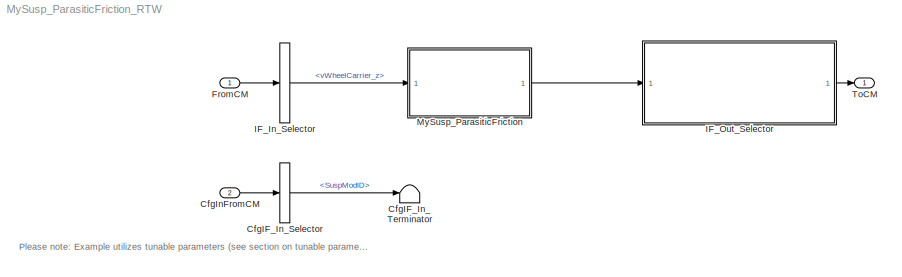
MODEL MySusp_ParasiticFriction_RTW
KIND model
CONFIG InitFcn = vehicle = 'Car'; if ~length(which('cmself')), cmenv; end\nMySusp_ParasiticFriction_RTW_bus
CONFIG PreLoadFcn = vehicle = 'Car'; if ~length(which('cmself')), cmenv; end\nMySusp_ParasiticFriction_RTW_bus\nMySusp_ParasiticFriction_RTW_params
BLOCK [BusSelector] CfgIF_In_Selector
  OutputAsBus = off
  OutputSignals = SuspModID
  Ports = [1, 1]
  SID = 9
BLOCK [Terminator] CfgIF_In_Terminator
  SID = 10
BLOCK [Inport] CfgInFromCM
  IconDisplay = Port number
  OutDataTypeStr = Bus: cmSusp_ParasiticEffectsCfgIn
  Port = 2
  SID = 8
BLOCK [Inport] FromCM
  IconDisplay = Port number
  OutDataTypeStr = Bus: cmSusp_ParasiticEffectsIn
  SID = 1
BLOCK [BusSelector] IF_In_Selector
  OutputAsBus = off
  OutputSignals = vWheelCarrier_z
  Ports = [1, 1]
  SID = 2
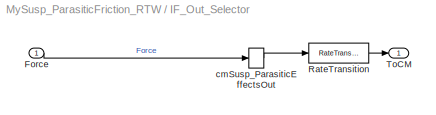
BLOCK [SubSystem] IF_Out_Selector
  OpenFcn = cmSignalSelect('SignalSelection_CB',gcb)
  Ports = [1, 1]
  RequestExecContextInheritance = off
  SID = 5
  UserData = DataTag0
  UserDataPersistent = on
BLOCK [Inport] IF_Out_Selector/Force
  IconDisplay = Port number
  SID = 59
BLOCK [RateTransition] IF_Out_Selector/RateTransition
  OutPortSampleTime = str2num(get_param(bdroot,'FixedStep'))
  SID = 6
BLOCK [Outport] IF_Out_Selector/ToCM
  IconDisplay = Port number
  SID = 7
BLOCK [BusCreator] IF_Out_Selector/cmSusp_ParasiticEffectsOut
  InheritFromInputs = on
  Inputs = 1
  Ports = [1, 1]
  SID = 11
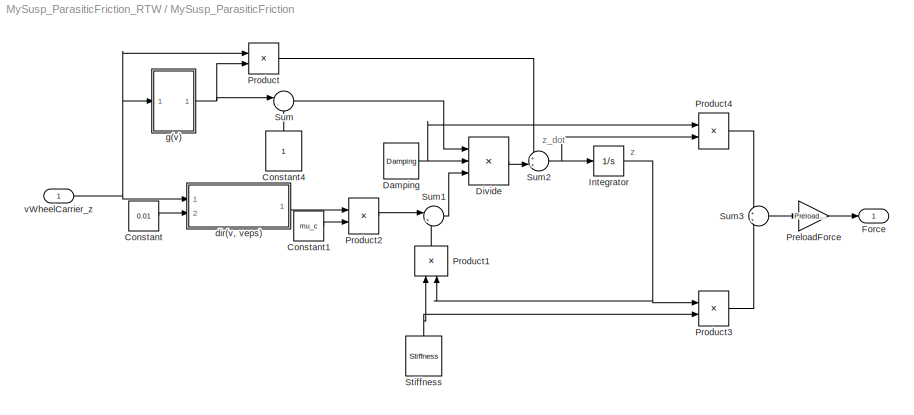
BLOCK [SubSystem] MySusp_ParasiticFriction
  Ports = [1, 1]
  RequestExecContextInheritance = off
  SID = 13
BLOCK [Constant] MySusp_ParasiticFriction/Constant
  SID = 15
  Value = 0.01
BLOCK [Constant] MySusp_ParasiticFriction/Constant1
  SID = 16
  Value = mu_c
BLOCK [Constant] MySusp_ParasiticFriction/Constant4
  SID = 17
BLOCK [Constant] MySusp_ParasiticFriction/Damping
  SID = 18
  Value = Damping
BLOCK [Product] MySusp_ParasiticFriction/Divide
  InputSameDT = off
  Inputs = */*
  OutDataTypeStr = Inherit: Inherit via internal rule
  Ports = [3, 1]
  RndMeth = Floor
  SID = 19
  SaturateOnIntegerOverflow = off
BLOCK [Outport] MySusp_ParasiticFriction/Force
  IconDisplay = Port number
  SID = 56
BLOCK [Integrator] MySusp_ParasiticFriction/Integrator
  Ports = [1, 1]
  SID = 20
BLOCK [Gain] MySusp_ParasiticFriction/PreloadForce
  Gain = PreloadForce
  OutDataTypeStr = Inherit: Inherit via internal rule
  ParamDataTypeStr = Inherit: Inherit via internal rule
  SID = 21
  SaturateOnIntegerOverflow = off
BLOCK [Product] MySusp_ParasiticFriction/Product
  InputSameDT = off
  OutDataTypeStr = Inherit: Inherit via internal rule
  Ports = [2, 1]
  RndMeth = Floor
  SID = 22
  SaturateOnIntegerOverflow = off
BLOCK [Product] MySusp_ParasiticFriction/Product1
  InputSameDT = off
  OutDataTypeStr = Inherit: Inherit via internal rule
  Ports = [2, 1]
  RndMeth = Floor
  SID = 23
  SaturateOnIntegerOverflow = off
BLOCK [Product] MySusp_ParasiticFriction/Product2
  InputSameDT = off
  OutDataTypeStr = Inherit: Inherit via internal rule
  Ports = [2, 1]
  RndMeth = Floor
  SID = 24
  SaturateOnIntegerOverflow = off
BLOCK [Product] MySusp_ParasiticFriction/Product3
  InputSameDT = off
  OutDataTypeStr = Inherit: Inherit via internal rule
  Ports = [2, 1]
  RndMeth = Floor
  SID = 25
  SaturateOnIntegerOverflow = off
BLOCK [Product] MySusp_ParasiticFriction/Product4
  InputSameDT = off
  OutDataTypeStr = Inherit: Inherit via internal rule
  Ports = [2, 1]
  RndMeth = Floor
  SID = 26
  SaturateOnIntegerOverflow = off
BLOCK [Constant] MySusp_ParasiticFriction/Stiffness
  SID = 27
  Value = Stiffness
BLOCK [Sum] MySusp_ParasiticFriction/Sum
  IconShape = round
  InputSameDT = off
  Inputs = |-+
  OutDataTypeStr = Inherit: Inherit via internal rule
  Ports = [2, 1]
  SID = 28
  SaturateOnIntegerOverflow = off
BLOCK [Sum] MySusp_ParasiticFriction/Sum1
  IconShape = round
  InputSameDT = off
  Inputs = |+-
  OutDataTypeStr = Inherit: Inherit via internal rule
  Ports = [2, 1]
  SID = 29
  SaturateOnIntegerOverflow = off
BLOCK [Sum] MySusp_ParasiticFriction/Sum2
  IconShape = round
  InputSameDT = off
  Inputs = ++|
  OutDataTypeStr = Inherit: Inherit via internal rule
  Ports = [2, 1]
  SID = 30
  SaturateOnIntegerOverflow = off
BLOCK [Sum] MySusp_ParasiticFriction/Sum3
  IconShape = round
  InputSameDT = off
  OutDataTypeStr = Inherit: Inherit via internal rule
  Ports = [2, 1]
  SID = 31
  SaturateOnIntegerOverflow = off
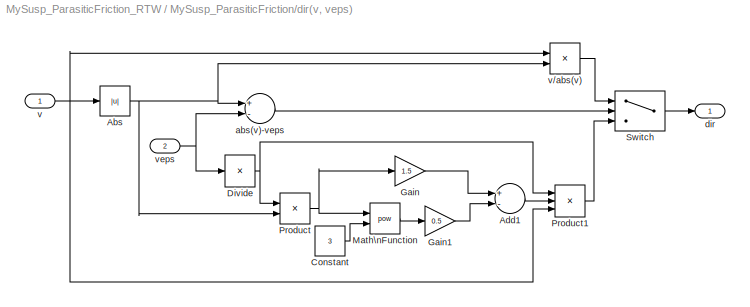
BLOCK [SubSystem] MySusp_ParasiticFriction/dir(v, veps)
  Ports = [2, 1]
  RequestExecContextInheritance = off
  SID = 32
BLOCK [Abs] MySusp_ParasiticFriction/dir(v, veps)/Abs
  SID = 35
  SaturateOnIntegerOverflow = off
BLOCK [Sum] MySusp_ParasiticFriction/dir(v, veps)/Add1
  InputSameDT = off
  Inputs = +-
  OutDataTypeStr = Inherit: Inherit via internal rule
  Ports = [2, 1]
  SID = 36
  SaturateOnIntegerOverflow = off
BLOCK [Constant] MySusp_ParasiticFriction/dir(v, veps)/Constant
  SID = 37
  Value = 3
BLOCK [Product] MySusp_ParasiticFriction/dir(v, veps)/Divide
  InputSameDT = off
  Inputs = /
  OutDataTypeStr = Inherit: Inherit via internal rule
  Ports = [1, 1]
  RndMeth = Floor
  SID = 38
  SaturateOnIntegerOverflow = off
BLOCK [Gain] MySusp_ParasiticFriction/dir(v, veps)/Gain
  Gain = 1.5
  OutDataTypeStr = Inherit: Inherit via internal rule
  ParamDataTypeStr = Inherit: Inherit via internal rule
  SID = 39
  SaturateOnIntegerOverflow = off
BLOCK [Gain] MySusp_ParasiticFriction/dir(v, veps)/Gain1
  Gain = 0.5
  OutDataTypeStr = Inherit: Inherit via internal rule
  ParamDataTypeStr = Inherit: Inherit via internal rule
  SID = 40
  SaturateOnIntegerOverflow = off
BLOCK [Math] MySusp_ParasiticFriction/dir(v, veps)/Math\nFunction
  Operator = pow
  Ports = [2, 1]
  SID = 41
BLOCK [Product] MySusp_ParasiticFriction/dir(v, veps)/Product
  InputSameDT = off
  OutDataTypeStr = Inherit: Inherit via internal rule
  Ports = [2, 1]
  RndMeth = Floor
  SID = 42
  SaturateOnIntegerOverflow = off
BLOCK [Product] MySusp_ParasiticFriction/dir(v, veps)/Product1
  InputSameDT = off
  Inputs = 3
  OutDataTypeStr = Inherit: Inherit via internal rule
  Ports = [3, 1]
  RndMeth = Floor
  SID = 43
  SaturateOnIntegerOverflow = off
BLOCK [Switch] MySusp_ParasiticFriction/dir(v, veps)/Switch
  InputSameDT = off
  SID = 44
  SaturateOnIntegerOverflow = off
BLOCK [Sum] MySusp_ParasiticFriction/dir(v, veps)/abs(v)-veps
  InputSameDT = off
  Inputs = +-
  OutDataTypeStr = Inherit: Inherit via internal rule
  Ports = [2, 1]
  SID = 45
  SaturateOnIntegerOverflow = off
BLOCK [Outport] MySusp_ParasiticFriction/dir(v, veps)/dir
  IconDisplay = Port number
  SID = 47
BLOCK [Inport] MySusp_ParasiticFriction/dir(v, veps)/v
  IconDisplay = Port number
  SID = 33
BLOCK [Product] MySusp_ParasiticFriction/dir(v, veps)/v//abs(v)
  InputSameDT = off
  Inputs = */
  OutDataTypeStr = Inherit: Inherit via internal rule
  Ports = [2, 1]
  RndMeth = Floor
  SID = 46
  SaturateOnIntegerOverflow = off
BLOCK [Inport] MySusp_ParasiticFriction/dir(v, veps)/veps
  IconDisplay = Port number
  Port = 2
  SID = 34
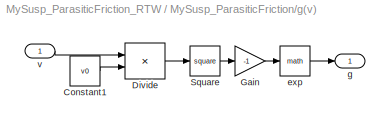
BLOCK [SubSystem] MySusp_ParasiticFriction/g(v)
  Ports = [1, 1]
  RequestExecContextInheritance = off
  SID = 48
BLOCK [Constant] MySusp_ParasiticFriction/g(v)/Constant1
  SID = 50
  Value = v0
BLOCK [Product] MySusp_ParasiticFriction/g(v)/Divide
  InputSameDT = off
  Inputs = */
  OutDataTypeStr = Inherit: Inherit via internal rule
  Ports = [2, 1]
  RndMeth = Floor
  SID = 51
  SaturateOnIntegerOverflow = off
BLOCK [Gain] MySusp_ParasiticFriction/g(v)/Gain
  Gain = -1
  OutDataTypeStr = Inherit: Inherit via internal rule
  ParamDataTypeStr = Inherit: Inherit via internal rule
  SID = 52
  SaturateOnIntegerOverflow = off
BLOCK [Math] MySusp_ParasiticFriction/g(v)/Square
  Operator = square
  Ports = [1, 1]
  SID = 53
BLOCK [Math] MySusp_ParasiticFriction/g(v)/exp
  Ports = [1, 1]
  SID = 54
BLOCK [Outport] MySusp_ParasiticFriction/g(v)/g
  IconDisplay = Port number
  SID = 55
BLOCK [Inport] MySusp_ParasiticFriction/g(v)/v
  IconDisplay = Port number
  SID = 49
BLOCK [Inport] MySusp_ParasiticFriction/vWheelCarrier_z
  IconDisplay = Port number
  SID = 14
BLOCK [Outport] ToCM
  IconDisplay = Port number
  OutDataTypeStr = Bus: cmSusp_ParasiticEffectsOut
  SID = 4
ANNOTATION (root): Please note: Example utilizes tunable parameters (see section on tunable parameters in the Programmers Guide).
ANNOTATION MySusp_ParasiticFriction: z
ANNOTATION MySusp_ParasiticFriction: z_dot
LINE CfgIF_In_Selector:1 -> CfgIF_In_Terminator:1
LINE CfgInFromCM:1 -> CfgIF_In_Selector:1
LINE FromCM:1 -> IF_In_Selector:1
LINE IF_In_Selector:1 -> MySusp_ParasiticFriction:1
LINE IF_Out_Selector/Force:1 -> IF_Out_Selector/cmSusp_ParasiticEffectsOut:1
LINE IF_Out_Selector/RateTransition:1 -> IF_Out_Selector/ToCM:1
LINE IF_Out_Selector/cmSusp_ParasiticEffectsOut:1 -> IF_Out_Selector/RateTransition:1
LINE IF_Out_Selector:1 -> ToCM:1
LINE MySusp_ParasiticFriction/Constant1:1 -> MySusp_ParasiticFriction/Product2:2
LINE MySusp_ParasiticFriction/Constant4:1 -> MySusp_ParasiticFriction/Sum:2
LINE MySusp_ParasiticFriction/Constant:1 -> MySusp_ParasiticFriction/dir(v, veps):2
NET MySusp_ParasiticFriction/Damping:1 -> MySusp_ParasiticFriction/Divide:2, MySusp_ParasiticFriction/Product4:1
LINE MySusp_ParasiticFriction/Divide:1 -> MySusp_ParasiticFriction/Sum2:2
NET MySusp_ParasiticFriction/Integrator:1 -> MySusp_ParasiticFriction/Product1:2, MySusp_ParasiticFriction/Product3:1
LINE MySusp_ParasiticFriction/PreloadForce:1 -> MySusp_ParasiticFriction/Force:1
LINE MySusp_ParasiticFriction/Product1:1 -> MySusp_ParasiticFriction/Sum1:2
LINE MySusp_ParasiticFriction/Product2:1 -> MySusp_ParasiticFriction/Sum1:1
LINE MySusp_ParasiticFriction/Product3:1 -> MySusp_ParasiticFriction/Sum3:2
LINE MySusp_ParasiticFriction/Product4:1 -> MySusp_ParasiticFriction/Sum3:1
LINE MySusp_ParasiticFriction/Product:1 -> MySusp_ParasiticFriction/Sum2:1
NET MySusp_ParasiticFriction/Stiffness:1 -> MySusp_ParasiticFriction/Product1:1, MySusp_ParasiticFriction/Product3:2
LINE MySusp_ParasiticFriction/Sum1:1 -> MySusp_ParasiticFriction/Divide:3
NET MySusp_ParasiticFriction/Sum2:1 -> MySusp_ParasiticFriction/Integrator:1, MySusp_ParasiticFriction/Product4:2
LINE MySusp_ParasiticFriction/Sum3:1 -> MySusp_ParasiticFriction/PreloadForce:1
LINE MySusp_ParasiticFriction/Sum:1 -> MySusp_ParasiticFriction/Divide:1
NET MySusp_ParasiticFriction/dir(v, veps)/Abs:1 -> MySusp_ParasiticFriction/dir(v, veps)/Product:2, MySusp_ParasiticFriction/dir(v, veps)/abs(v)-veps:1, MySusp_ParasiticFriction/dir(v, veps)/v//abs(v):2
LINE MySusp_ParasiticFriction/dir(v, veps)/Add1:1 -> MySusp_ParasiticFriction/dir(v, veps)/Product1:2
LINE MySusp_ParasiticFriction/dir(v, veps)/Constant:1 -> MySusp_ParasiticFriction/dir(v, veps)/Math\nFunction:2
NET MySusp_ParasiticFriction/dir(v, veps)/Divide:1 -> MySusp_ParasiticFriction/dir(v, veps)/Product1:1, MySusp_ParasiticFriction/dir(v, veps)/Product:1
LINE MySusp_ParasiticFriction/dir(v, veps)/Gain1:1 -> MySusp_ParasiticFriction/dir(v, veps)/Add1:2
LINE MySusp_ParasiticFriction/dir(v, veps)/Gain:1 -> MySusp_ParasiticFriction/dir(v, veps)/Add1:1
LINE MySusp_ParasiticFriction/dir(v, veps)/Math\nFunction:1 -> MySusp_ParasiticFriction/dir(v, veps)/Gain1:1
LINE MySusp_ParasiticFriction/dir(v, veps)/Product1:1 -> MySusp_ParasiticFriction/dir(v, veps)/Switch:3
NET MySusp_ParasiticFriction/dir(v, veps)/Product:1 -> MySusp_ParasiticFriction/dir(v, veps)/Gain:1, MySusp_ParasiticFriction/dir(v, veps)/Math\nFunction:1
LINE MySusp_ParasiticFriction/dir(v, veps)/Switch:1 -> MySusp_ParasiticFriction/dir(v, veps)/dir:1
LINE MySusp_ParasiticFriction/dir(v, veps)/abs(v)-veps:1 -> MySusp_ParasiticFriction/dir(v, veps)/Switch:2
LINE MySusp_ParasiticFriction/dir(v, veps)/v//abs(v):1 -> MySusp_ParasiticFriction/dir(v, veps)/Switch:1
NET MySusp_ParasiticFriction/dir(v, veps)/v:1 -> MySusp_ParasiticFriction/dir(v, veps)/Abs:1, MySusp_ParasiticFriction/dir(v, veps)/Product1:3, MySusp_ParasiticFriction/dir(v, veps)/v//abs(v):1
NET MySusp_ParasiticFriction/dir(v, veps)/veps:1 -> MySusp_ParasiticFriction/dir(v, veps)/Divide:1, MySusp_ParasiticFriction/dir(v, veps)/abs(v)-veps:2
LINE MySusp_ParasiticFriction/dir(v, veps):1 -> MySusp_ParasiticFriction/Product2:1
LINE MySusp_ParasiticFriction/g(v)/Constant1:1 -> MySusp_ParasiticFriction/g(v)/Divide:2
LINE MySusp_ParasiticFriction/g(v)/Divide:1 -> MySusp_ParasiticFriction/g(v)/Square:1
LINE MySusp_ParasiticFriction/g(v)/Gain:1 -> MySusp_ParasiticFriction/g(v)/exp:1
LINE MySusp_ParasiticFriction/g(v)/Square:1 -> MySusp_ParasiticFriction/g(v)/Gain:1
LINE MySusp_ParasiticFriction/g(v)/exp:1 -> MySusp_ParasiticFriction/g(v)/g:1
LINE MySusp_ParasiticFriction/g(v)/v:1 -> MySusp_ParasiticFriction/g(v)/Divide:1
NET MySusp_ParasiticFriction/g(v):1 -> MySusp_ParasiticFriction/Product:2, MySusp_ParasiticFriction/Sum:1
NET MySusp_ParasiticFriction/vWheelCarrier_z:1 -> MySusp_ParasiticFriction/Product:1, MySusp_ParasiticFriction/dir(v, veps):1, MySusp_ParasiticFriction/g(v):1
LINE MySusp_ParasiticFriction:1 -> IF_Out_Selector:1
note: NET lines group one-source signal fan-out (src -> all destinations, sorted); 1:1 wires keep LINE
